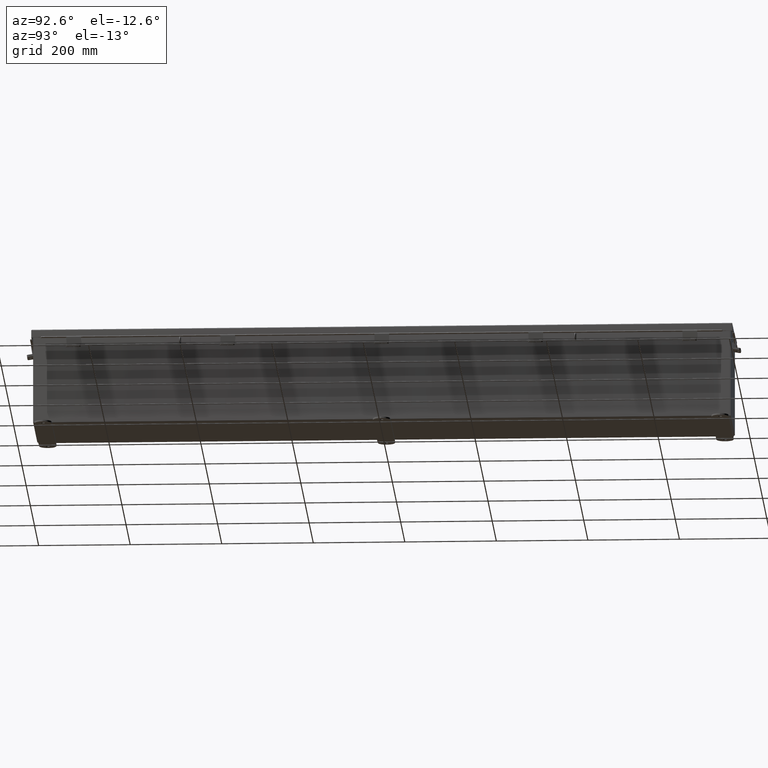
[diagram: clean part render]
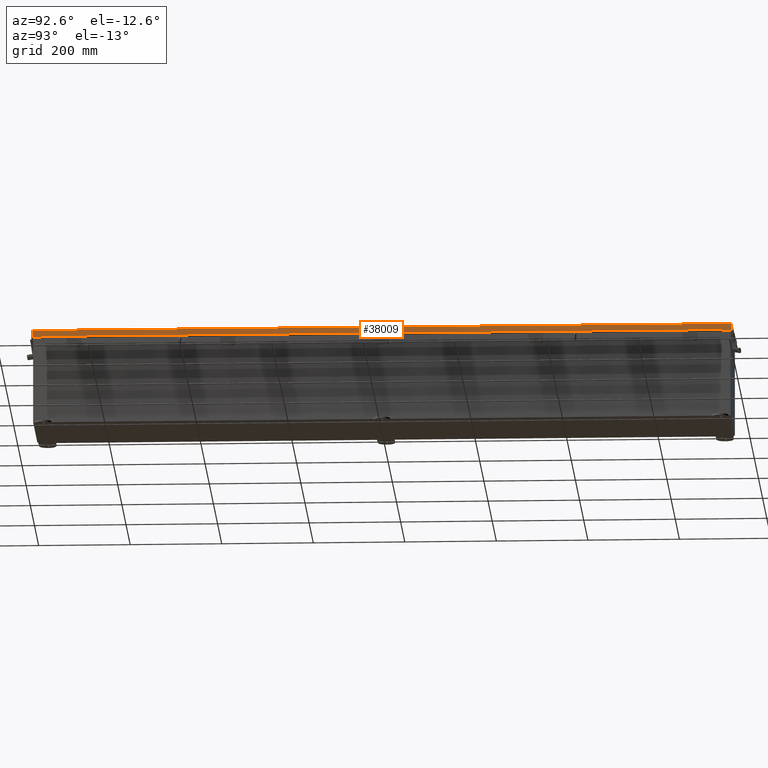
[diagram: same view with one face highlighted and labeled with its STEP entity id]
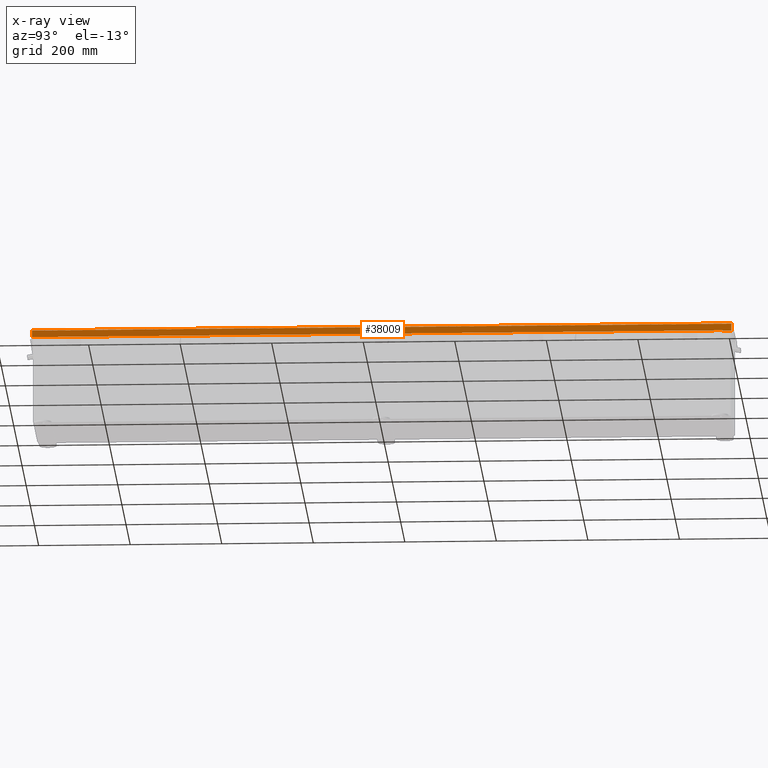
[diagram: x-ray of the same camera — body ghosted, the highlighted face saturated]
A machine part, auxiliary view. The second image highlights one B-rep face of the part: STEP entity #38009.
The next image is the same camera in x-ray: the body ghosted, the highlighted face saturated — about 0% of this face is hidden behind the body in this view.
In plain terms, the highlighted planar face has unit normal (-1, 0, -0).
Its self-contained STEP definition (entity closure, byte-faithful):
#564 = CARTESIAN_POINT ( 'NONE',  ( -4.156250000000025800, -29.32447893218813900, 0.5967115427318772100 ) ) ;
#917 = CARTESIAN_POINT ( 'NONE',  ( -4.156250000000024000, 29.32447893218812900, 0.6122999999999982900 ) ) ;
#2342 = ORIENTED_EDGE ( 'NONE', *, *, #27771, .T. ) ;
#3381 = DIRECTION ( 'NONE',  ( 1.127226056845239200E-028, 1.000000000000000000, -7.321615276582515800E-030 ) ) ;
#3413 = LINE ( 'NONE', #14459, #37143 ) ;
#6861 = ORIENTED_EDGE ( 'NONE', *, *, #15252, .T. ) ;
#6960 = VERTEX_POINT ( 'NONE', #19533 ) ;
#7012 = PLANE ( 'NONE',  #23696 ) ;
#7338 = DIRECTION ( 'NONE',  ( -3.504962610059787500E-014, -7.617438116040364400E-030, 1.000000000000000000 ) ) ;
#7741 = VERTEX_POINT ( 'NONE', #33732 ) ;
#7755 = CARTESIAN_POINT ( 'NONE',  ( -4.156250000000018700, 30.07447893218812900, 0.0000000000000000000 ) ) ;
#10008 = VERTEX_POINT ( 'NONE', #16319 ) ;
#10058 = ORIENTED_EDGE ( 'NONE', *, *, #35965, .F. ) ;
#10200 = VERTEX_POINT ( 'NONE', #20693 ) ;
#10928 = DIRECTION ( 'NONE',  ( 2.453473827042142800E-013, -2.803970088048152600E-013, -1.000000000000000000 ) ) ;
#10970 = EDGE_LOOP ( 'NONE', ( #26371, #2342, #10058, #25344, #28199, #6861, #29436, #27647 ) ) ;
#11397 = VECTOR ( 'NONE', #25319, 39.37007874015748100 ) ;
#13798 = DIRECTION ( 'NONE',  ( 3.569293475308526900E-015, 7.395570986446956200E-030, -1.000000000000000000 ) ) ;
#14459 = CARTESIAN_POINT ( 'NONE',  ( -4.156250000000021300, 0.0000000000000000000, 0.6123000000000091700 ) ) ;
#14516 = DIRECTION ( 'NONE',  ( -3.569293475308526900E-015, -7.395570986446956200E-030, 1.000000000000000000 ) ) ;
#15252 = EDGE_CURVE ( 'NONE', #17924, #29204, #3413, .T. ) ;
#15613 = FACE_OUTER_BOUND ( 'NONE', #10970, .T. ) ;
#15665 = CARTESIAN_POINT ( 'NONE',  ( -4.156250000000018700, 30.15624999999999600, 0.01300000000000010700 ) ) ;
#16319 = CARTESIAN_POINT ( 'NONE',  ( -4.156250000000018700, -30.07447893218813900, 0.01300000000000010700 ) ) ;
#16370 = VECTOR ( 'NONE', #10928, 39.37007874015748100 ) ;
#17227 = LINE ( 'NONE', #30296, #35152 ) ;
#17422 = VECTOR ( 'NONE', #42572, 39.37007874015748100 ) ;
#17924 = VERTEX_POINT ( 'NONE', #29966 ) ;
#18164 = VERTEX_POINT ( 'NONE', #28057 ) ;
#18911 = VERTEX_POINT ( 'NONE', #28300 ) ;
#19533 = CARTESIAN_POINT ( 'NONE',  ( -4.156250000000025800, -29.32447893218813900, 0.5967115427318772100 ) ) ;
#20693 = CARTESIAN_POINT ( 'NONE',  ( -4.156250000000025800, 29.32447893218812500, 0.5967115427318772100 ) ) ;
#20737 = VECTOR ( 'NONE', #27720, 39.37007874015748100 ) ;
#20935 = CARTESIAN_POINT ( 'NONE',  ( -4.156250000000025800, 29.32447893218812900, 0.5967115427318772100 ) ) ;
#21128 = LINE ( 'NONE', #7755, #29037 ) ;
#21508 = LINE ( 'NONE', #564, #38399 ) ;
#21804 = LINE ( 'NONE', #20935, #20737 ) ;
#21914 = CARTESIAN_POINT ( 'NONE',  ( -4.156250000000018700, -30.07447893218813600, -1.529834876451987200E-014 ) ) ;
#23696 = AXIS2_PLACEMENT_3D ( 'NONE', #30547, #33934, #13798 ) ;
#24425 = EDGE_CURVE ( 'NONE', #7741, #10200, #42155, .T. ) ;
#25319 = DIRECTION ( 'NONE',  ( -3.569293475308526900E-015, -7.395570986446956200E-030, 1.000000000000000000 ) ) ;
#25344 = ORIENTED_EDGE ( 'NONE', *, *, #41846, .F. ) ;
#26371 = ORIENTED_EDGE ( 'NONE', *, *, #24425, .F. ) ;
#27647 = ORIENTED_EDGE ( 'NONE', *, *, #39906, .F. ) ;
#27720 = DIRECTION ( 'NONE',  ( -1.127226056845239200E-028, -1.000000000000000000, 7.321615276582515800E-030 ) ) ;
#27771 = EDGE_CURVE ( 'NONE', #7741, #18911, #17227, .T. ) ;
#28057 = CARTESIAN_POINT ( 'NONE',  ( -4.156250000000018700, 30.07447893218812900, 0.01300000000000010700 ) ) ;
#28199 = ORIENTED_EDGE ( 'NONE', *, *, #33160, .T. ) ;
#28300 = CARTESIAN_POINT ( 'NONE',  ( -4.156250000000021300, 30.07447893218812900, 0.6122999999999994000 ) ) ;
#29037 = VECTOR ( 'NONE', #14516, 39.37007874015748100 ) ;
#29204 = VERTEX_POINT ( 'NONE', #34170 ) ;
#29436 = ORIENTED_EDGE ( 'NONE', *, *, #31736, .F. ) ;
#29966 = CARTESIAN_POINT ( 'NONE',  ( -4.156250000000021300, -30.07447893218813900, 0.6122999999999994000 ) ) ;
#30296 = CARTESIAN_POINT ( 'NONE',  ( -4.156250000000021300, 0.0000000000000000000, 0.6123000000000091700 ) ) ;
#30323 = LINE ( 'NONE', #21914, #11397 ) ;
#30547 = CARTESIAN_POINT ( 'NONE',  ( -4.156250000000018700, 4.802076551362963100E-018, -1.420560956705417000E-014 ) ) ;
#31736 = EDGE_CURVE ( 'NONE', #6960, #29204, #21508, .T. ) ;
#33160 = EDGE_CURVE ( 'NONE', #10008, #17924, #30323, .T. ) ;
#33732 = CARTESIAN_POINT ( 'NONE',  ( -4.156250000000021300, 29.32447893218812900, 0.6122999999999994000 ) ) ;
#33934 = DIRECTION ( 'NONE',  ( 1.000000000000000000, 1.127020598427367900E-028, 3.569293475308526900E-015 ) ) ;
#34170 = CARTESIAN_POINT ( 'NONE',  ( -4.156250000000021300, -29.32447893218813900, 0.6122999999999994000 ) ) ;
#35152 = VECTOR ( 'NONE', #3381, 39.37007874015748100 ) ;
#35965 = EDGE_CURVE ( 'NONE', #18164, #18911, #21128, .T. ) ;
#36441 = LINE ( 'NONE', #15665, #17422 ) ;
#37143 = VECTOR ( 'NONE', #41386, 39.37007874015748100 ) ;
#38009 = ADVANCED_FACE ( 'NONE', ( #15613 ), #7012, .F. ) ;
#38399 = VECTOR ( 'NONE', #7338, 39.37007874015748100 ) ;
#39906 = EDGE_CURVE ( 'NONE', #10200, #6960, #21804, .T. ) ;
#41386 = DIRECTION ( 'NONE',  ( 1.127226056845239200E-028, 1.000000000000000000, -7.321615276582515800E-030 ) ) ;
#41846 = EDGE_CURVE ( 'NONE', #10008, #18164, #36441, .T. ) ;
#42155 = LINE ( 'NONE', #917, #16370 ) ;
#42572 = DIRECTION ( 'NONE',  ( 1.131857227302216600E-028, 1.000000000000000000, -9.058977802831824200E-018 ) ) ;